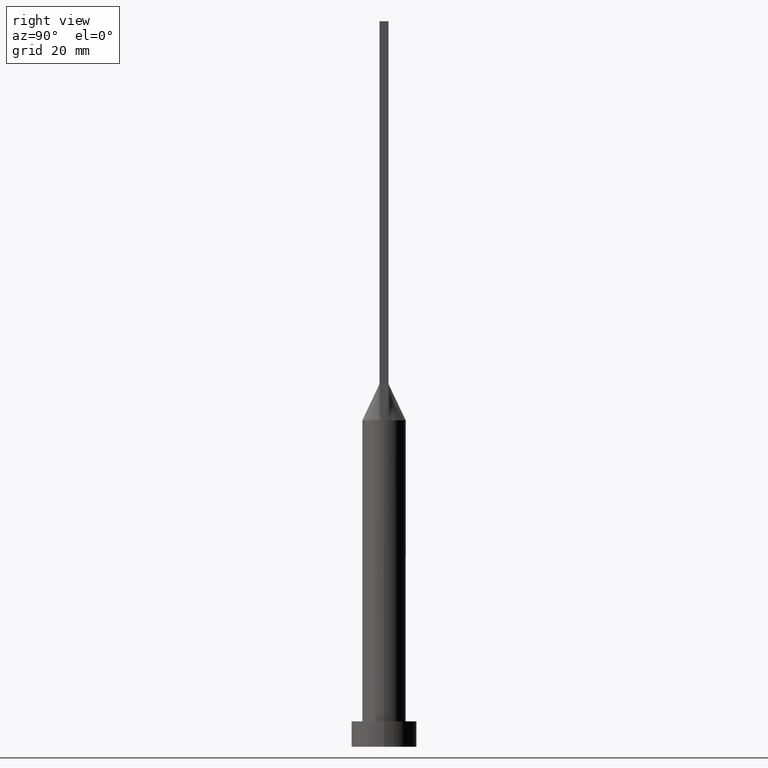
[diagram: clean part render]
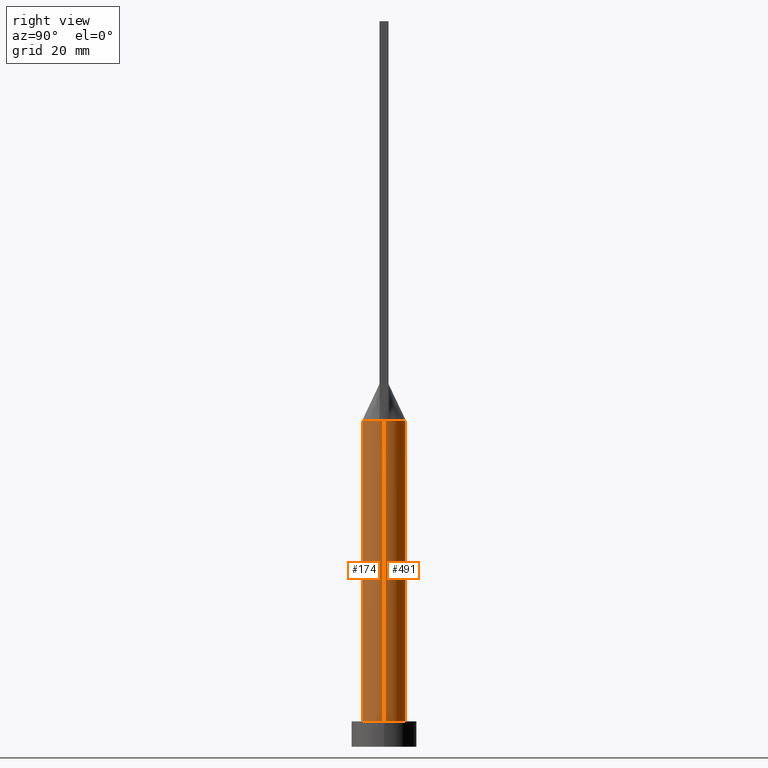
[diagram: same view with one multi-face feature highlighted, each face labeled with its STEP entity id]
A machine part, right view. The highlighted faces form ONE feature: a constant-radius fillet chain: 2 tangent blend faces with common blend radius 6 mm. The faces share edges in the B-rep.
Their STEP definitions:
[1] entity #174 (Cylinder):
#7 = DIRECTION ( 'NONE',  ( 1.000000000000000000, 0.000000000000000000, 0.000000000000000000 ) ) ;
#30 = ORIENTED_EDGE ( 'NONE', *, *, #247, .F. ) ;
#33 = EDGE_LOOP ( 'NONE', ( #30, #234, #313, #355, #37, #409 ) ) ;
#37 = ORIENTED_EDGE ( 'NONE', *, *, #388, .T. ) ;
#103 = VERTEX_POINT ( 'NONE', #554 ) ;
#124 = DIRECTION ( 'NONE',  ( -0.000000000000000000, -0.000000000000000000, -1.000000000000000000 ) ) ;
#127 = DIRECTION ( 'NONE',  ( 1.000000000000000000, -9.769962616701377556E-15, 0.000000000000000000 ) ) ;
#142 = VERTEX_POINT ( 'NONE', #158 ) ;
#151 = VECTOR ( 'NONE', #339, 1000.000000000000000 ) ;
#156 = CARTESIAN_POINT ( 'NONE',  ( -6.000000000000000888, -3.688698462745542764E-16, 90.00000000000000000 ) ) ;
#158 = CARTESIAN_POINT ( 'NONE',  ( 5.863058287509796074, -1.274577880478293901, 90.00000000000001421 ) ) ;
#174 = ADVANCED_FACE ( 'NONE', ( #576 ), #398, .T. ) ;
#183 = EDGE_CURVE ( 'NONE', #142, #495, #401, .T. ) ;
#203 = DIRECTION ( 'NONE',  ( 0.000000000000000000, 0.000000000000000000, 1.000000000000000000 ) ) ;
#218 = VERTEX_POINT ( 'NONE', #321 ) ;
#234 = ORIENTED_EDGE ( 'NONE', *, *, #183, .F. ) ;
#247 = EDGE_CURVE ( 'NONE', #495, #218, #411, .T. ) ;
#262 = DIRECTION ( 'NONE',  ( 1.000000000000000000, 0.000000000000000000, 0.000000000000000000 ) ) ;
#282 = CARTESIAN_POINT ( 'NONE',  ( 6.000000000000000888, 7.347880794884120722E-16, 90.00000000000001421 ) ) ;
#302 = CARTESIAN_POINT ( 'NONE',  ( 0.000000000000000000, 0.000000000000000000, 7.000000000000000000 ) ) ;
#304 = DIRECTION ( 'NONE',  ( 0.000000000000000000, 0.000000000000000000, 1.000000000000000000 ) ) ;
#313 = ORIENTED_EDGE ( 'NONE', *, *, #406, .F. ) ;
#321 = CARTESIAN_POINT ( 'NONE',  ( 6.000000000000000888, 7.347880794884120722E-16, 7.000000000000000000 ) ) ;
#339 = DIRECTION ( 'NONE',  ( -0.000000000000000000, -0.000000000000000000, -1.000000000000000000 ) ) ;
#343 = CARTESIAN_POINT ( 'NONE',  ( 0.000000000000000000, 0.000000000000000000, 90.00000000000001421 ) ) ;
#351 = CARTESIAN_POINT ( 'NONE',  ( 0.000000000000000000, 0.000000000000000000, 90.00000000000001421 ) ) ;
#355 = ORIENTED_EDGE ( 'NONE', *, *, #582, .F. ) ;
#364 = DIRECTION ( 'NONE',  ( -0.000000000000000000, -0.000000000000000000, -1.000000000000000000 ) ) ;
#374 = VERTEX_POINT ( 'NONE', #156 ) ;
#388 = EDGE_CURVE ( 'NONE', #374, #545, #434, .T. ) ;
#398 = CYLINDRICAL_SURFACE ( 'NONE', #418, 6.000000000000000888 ) ;
#399 = EDGE_CURVE ( 'NONE', #545, #218, #567, .T. ) ;
#401 = CIRCLE ( 'NONE', #515, 6.000000000000000888 ) ;
#406 = EDGE_CURVE ( 'NONE', #103, #142, #486, .T. ) ;
#409 = ORIENTED_EDGE ( 'NONE', *, *, #399, .T. ) ;
#411 = LINE ( 'NONE', #282, #444 ) ;
#418 = AXIS2_PLACEMENT_3D ( 'NONE', #351, #124, #539 ) ;
#424 = CARTESIAN_POINT ( 'NONE',  ( -6.000000000000000888, 0.000000000000000000, 90.00000000000001421 ) ) ;
#432 = AXIS2_PLACEMENT_3D ( 'NONE', #343, #532, #7 ) ;
#434 = LINE ( 'NONE', #424, #151 ) ;
#444 = VECTOR ( 'NONE', #364, 1000.000000000000000 ) ;
#473 = DIRECTION ( 'NONE',  ( 1.000000000000000000, 0.000000000000000000, 0.000000000000000000 ) ) ;
#483 = DIRECTION ( 'NONE',  ( 0.000000000000000000, 0.000000000000000000, 1.000000000000000000 ) ) ;
#486 = CIRCLE ( 'NONE', #432, 6.000000000000000888 ) ;
#495 = VERTEX_POINT ( 'NONE', #497 ) ;
#497 = CARTESIAN_POINT ( 'NONE',  ( 6.000000000000000888, 6.923844231069229210E-17, 90.00000000000000000 ) ) ;
#502 = CARTESIAN_POINT ( 'NONE',  ( -6.000000000000000888, 0.000000000000000000, 7.000000000000000000 ) ) ;
#515 = AXIS2_PLACEMENT_3D ( 'NONE', #535, #304, #127 ) ;
#531 = CARTESIAN_POINT ( 'NONE',  ( 0.000000000000000000, 0.000000000000000000, 90.00000000000001421 ) ) ;
#532 = DIRECTION ( 'NONE',  ( 0.000000000000000000, 0.000000000000000000, 1.000000000000000000 ) ) ;
#535 = CARTESIAN_POINT ( 'NONE',  ( 0.000000000000000000, 0.000000000000000000, 90.00000000000001421 ) ) ;
#539 = DIRECTION ( 'NONE',  ( -1.000000000000000000, 0.000000000000000000, 0.000000000000000000 ) ) ;
#545 = VERTEX_POINT ( 'NONE', #502 ) ;
#551 = AXIS2_PLACEMENT_3D ( 'NONE', #302, #483, #473 ) ;
#554 = CARTESIAN_POINT ( 'NONE',  ( -5.863065408737084816, -1.274579424051652365, 90.00000000000001421 ) ) ;
#567 = CIRCLE ( 'NONE', #551, 6.000000000000000888 ) ;
#576 = FACE_OUTER_BOUND ( 'NONE', #33, .T. ) ;
#581 = CIRCLE ( 'NONE', #584, 6.000000000000000888 ) ;
#582 = EDGE_CURVE ( 'NONE', #374, #103, #581, .T. ) ;
#584 = AXIS2_PLACEMENT_3D ( 'NONE', #531, #203, #262 ) ;
[2] entity #491 (Cylinder):
#2 = CARTESIAN_POINT ( 'NONE',  ( -0.8058840496048931268, 5.959001506938069070, 90.00000000000001421 ) ) ;
#3 = DIRECTION ( 'NONE',  ( 1.000000000000000000, 0.000000000000000000, 0.000000000000000000 ) ) ;
#6 = CARTESIAN_POINT ( 'NONE',  ( -5.759267569818392829, 1.752014689090956256, 90.00000000000002842 ) ) ;
#12 = CIRCLE ( 'NONE', #380, 6.000000000000000888 ) ;
#25 = AXIS2_PLACEMENT_3D ( 'NONE', #36, #312, #3 ) ;
#31 = B_SPLINE_CURVE_WITH_KNOTS ( 'NONE', 3,
 ( #96, #152, #329, #276, #462, #148, #106, #236, #226, #410, #420, #565, #2, #324, #359, #187, #190, #57, #367, #372, #6, #512 ),
 .UNSPECIFIED., .F., .F.,
 ( 4, 2, 2, 2, 2, 2, 2, 2, 2, 2, 4 ),
 ( 0.000000000000000000, 0.1249999999999999722, 0.2499999999999999445, 0.3749999999999999445, 0.4374999999999999445, 0.4999999999999998890, 0.5624999999999998890, 0.6249999999999998890, 0.7499999999999997780, 0.8749999999999998890, 1.000000000000000000 ),
 .UNSPECIFIED. ) ;
#36 = CARTESIAN_POINT ( 'NONE',  ( 0.000000000000000000, 0.000000000000000000, 90.00000000000001421 ) ) ;
#47 = DIRECTION ( 'NONE',  ( -0.000000000000000000, -0.000000000000000000, -1.000000000000000000 ) ) ;
#53 = CARTESIAN_POINT ( 'NONE',  ( 0.000000000000000000, 0.000000000000000000, 90.00000000000001421 ) ) ;
#57 = CARTESIAN_POINT ( 'NONE',  ( -4.659826596530312948, 3.842755878357679844, 90.00000000000001421 ) ) ;
#79 = VERTEX_POINT ( 'NONE', #92 ) ;
#92 = CARTESIAN_POINT ( 'NONE',  ( 5.863058183536806744, 1.274577865986262326, 90.00000000000001421 ) ) ;
#95 = EDGE_CURVE ( 'NONE', #218, #545, #12, .T. ) ;
#96 = CARTESIAN_POINT ( 'NONE',  ( 5.863058183536806744, 1.274577865986262326, 90.00000000000001421 ) ) ;
#106 = CARTESIAN_POINT ( 'NONE',  ( 3.037647739454305995, 5.231880992812856235, 90.00000000000002842 ) ) ;
#129 = DIRECTION ( 'NONE',  ( 0.000000000000000000, 0.000000000000000000, 1.000000000000000000 ) ) ;
#137 = CARTESIAN_POINT ( 'NONE',  ( 0.000000000000000000, 0.000000000000000000, 7.000000000000000000 ) ) ;
#148 = CARTESIAN_POINT ( 'NONE',  ( 3.660567483996337579, 4.804269179125218336, 90.00000000000002842 ) ) ;
#150 = EDGE_LOOP ( 'NONE', ( #591, #400, #448, #357, #457, #569 ) ) ;
#151 = VECTOR ( 'NONE', #339, 1000.000000000000000 ) ;
#152 = CARTESIAN_POINT ( 'NONE',  ( 5.759267569818392829, 1.752014689090955590, 90.00000000000002842 ) ) ;
#156 = CARTESIAN_POINT ( 'NONE',  ( -6.000000000000000888, -3.688698462745542764E-16, 90.00000000000000000 ) ) ;
#169 = AXIS2_PLACEMENT_3D ( 'NONE', #53, #177, #472 ) ;
#177 = DIRECTION ( 'NONE',  ( 0.000000000000000000, 0.000000000000000000, 1.000000000000000000 ) ) ;
#184 = DIRECTION ( 'NONE',  ( 1.000000000000000000, 0.000000000000000000, 0.000000000000000000 ) ) ;
#187 = CARTESIAN_POINT ( 'NONE',  ( -3.037647739454304663, 5.231880992812857123, 90.00000000000007105 ) ) ;
#190 = CARTESIAN_POINT ( 'NONE',  ( -3.660567483996338023, 4.804269179125219225, 90.00000000000005684 ) ) ;
#217 = EDGE_CURVE ( 'NONE', #337, #374, #327, .T. ) ;
#218 = VERTEX_POINT ( 'NONE', #321 ) ;
#226 = CARTESIAN_POINT ( 'NONE',  ( 1.587717880441007479, 5.799853445840305710, 90.00000000000000000 ) ) ;
#236 = CARTESIAN_POINT ( 'NONE',  ( 1.966519853258819062, 5.681792876789066860, 90.00000000000002842 ) ) ;
#247 = EDGE_CURVE ( 'NONE', #495, #218, #411, .T. ) ;
#267 = AXIS2_PLACEMENT_3D ( 'NONE', #376, #47, #458 ) ;
#276 = CARTESIAN_POINT ( 'NONE',  ( 5.038190104264874236, 3.311355329404293002, 90.00000000000004263 ) ) ;
#282 = CARTESIAN_POINT ( 'NONE',  ( 6.000000000000000888, 7.347880794884120722E-16, 90.00000000000001421 ) ) ;
#305 = CIRCLE ( 'NONE', #169, 6.000000000000000888 ) ;
#312 = DIRECTION ( 'NONE',  ( 0.000000000000000000, 0.000000000000000000, 1.000000000000000000 ) ) ;
#321 = CARTESIAN_POINT ( 'NONE',  ( 6.000000000000000888, 7.347880794884120722E-16, 7.000000000000000000 ) ) ;
#324 = CARTESIAN_POINT ( 'NONE',  ( -1.587717880441007035, 5.799853445840308375, 90.00000000000001421 ) ) ;
#327 = CIRCLE ( 'NONE', #25, 6.000000000000000888 ) ;
#329 = CARTESIAN_POINT ( 'NONE',  ( 5.586898165904734093, 2.266054396544147309, 90.00000000000002842 ) ) ;
#337 = VERTEX_POINT ( 'NONE', #391 ) ;
#339 = DIRECTION ( 'NONE',  ( -0.000000000000000000, -0.000000000000000000, -1.000000000000000000 ) ) ;
#357 = ORIENTED_EDGE ( 'NONE', *, *, #388, .F. ) ;
#359 = CARTESIAN_POINT ( 'NONE',  ( -1.966519853258818173, 5.681792876789067748, 90.00000000000001421 ) ) ;
#364 = DIRECTION ( 'NONE',  ( -0.000000000000000000, -0.000000000000000000, -1.000000000000000000 ) ) ;
#367 = CARTESIAN_POINT ( 'NONE',  ( -5.038190104264874236, 3.311355329404293446, 90.00000000000001421 ) ) ;
#372 = CARTESIAN_POINT ( 'NONE',  ( -5.586898165904732316, 2.266054396544148197, 90.00000000000002842 ) ) ;
#374 = VERTEX_POINT ( 'NONE', #156 ) ;
#376 = CARTESIAN_POINT ( 'NONE',  ( 0.000000000000000000, 0.000000000000000000, 90.00000000000001421 ) ) ;
#380 = AXIS2_PLACEMENT_3D ( 'NONE', #137, #129, #184 ) ;
#388 = EDGE_CURVE ( 'NONE', #374, #545, #434, .T. ) ;
#391 = CARTESIAN_POINT ( 'NONE',  ( -5.863058287509749888, 1.274577880478287017, 90.00000000000001421 ) ) ;
#400 = ORIENTED_EDGE ( 'NONE', *, *, #247, .T. ) ;
#410 = CARTESIAN_POINT ( 'NONE',  ( 0.8058840496048939039, 5.959001506938069070, 90.00000000000002842 ) ) ;
#411 = LINE ( 'NONE', #282, #444 ) ;
#414 = CYLINDRICAL_SURFACE ( 'NONE', #267, 6.000000000000000888 ) ;
#420 = CARTESIAN_POINT ( 'NONE',  ( 0.4029827085191226566, 5.999999999999999112, 90.00000000000002842 ) ) ;
#424 = CARTESIAN_POINT ( 'NONE',  ( -6.000000000000000888, 0.000000000000000000, 90.00000000000001421 ) ) ;
#434 = LINE ( 'NONE', #424, #151 ) ;
#443 = EDGE_CURVE ( 'NONE', #495, #79, #305, .T. ) ;
#444 = VECTOR ( 'NONE', #364, 1000.000000000000000 ) ;
#448 = ORIENTED_EDGE ( 'NONE', *, *, #95, .T. ) ;
#457 = ORIENTED_EDGE ( 'NONE', *, *, #217, .F. ) ;
#458 = DIRECTION ( 'NONE',  ( -1.000000000000000000, 0.000000000000000000, 0.000000000000000000 ) ) ;
#462 = CARTESIAN_POINT ( 'NONE',  ( 4.659826596530313836, 3.842755878357678068, 90.00000000000002842 ) ) ;
#472 = DIRECTION ( 'NONE',  ( 1.000000000000000000, 0.000000000000000000, 0.000000000000000000 ) ) ;
#491 = ADVANCED_FACE ( 'NONE', ( #506 ), #414, .T. ) ;
#495 = VERTEX_POINT ( 'NONE', #497 ) ;
#496 = EDGE_CURVE ( 'NONE', #79, #337, #31, .T. ) ;
#497 = CARTESIAN_POINT ( 'NONE',  ( 6.000000000000000888, 6.923844231069229210E-17, 90.00000000000000000 ) ) ;
#502 = CARTESIAN_POINT ( 'NONE',  ( -6.000000000000000888, 0.000000000000000000, 7.000000000000000000 ) ) ;
#506 = FACE_OUTER_BOUND ( 'NONE', #150, .T. ) ;
#512 = CARTESIAN_POINT ( 'NONE',  ( -5.863058287509749888, 1.274577880478287017, 90.00000000000001421 ) ) ;
#545 = VERTEX_POINT ( 'NONE', #502 ) ;
#565 = CARTESIAN_POINT ( 'NONE',  ( -0.4029827085191223790, 5.999999999999998224, 90.00000000000002842 ) ) ;
#569 = ORIENTED_EDGE ( 'NONE', *, *, #496, .F. ) ;
#591 = ORIENTED_EDGE ( 'NONE', *, *, #443, .F. ) ;